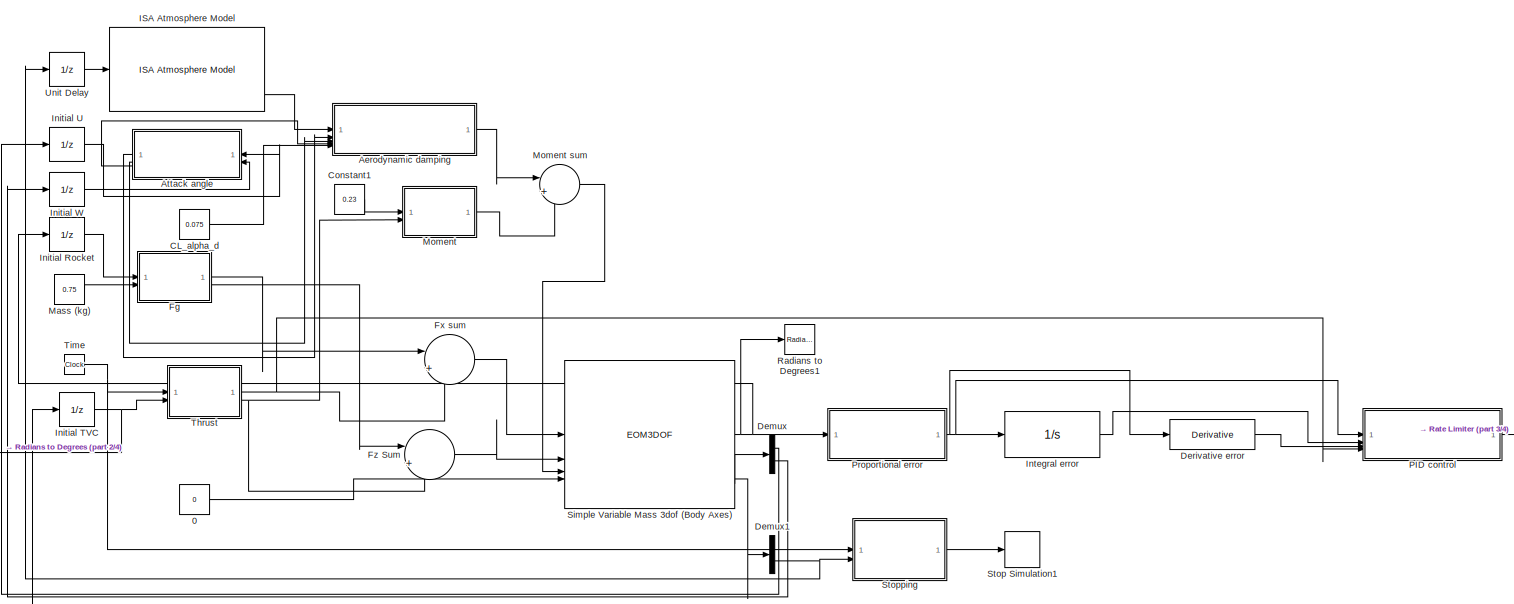
[diagram: root canvas - part 1/4, full width, middle band]
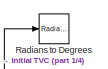
[diagram: root canvas - part 2/4, middle left region]
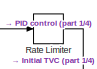
[diagram: root canvas - part 3/4, middle right region]
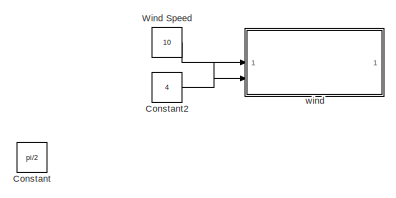
[diagram: root canvas - part 4/4, bottom left region]
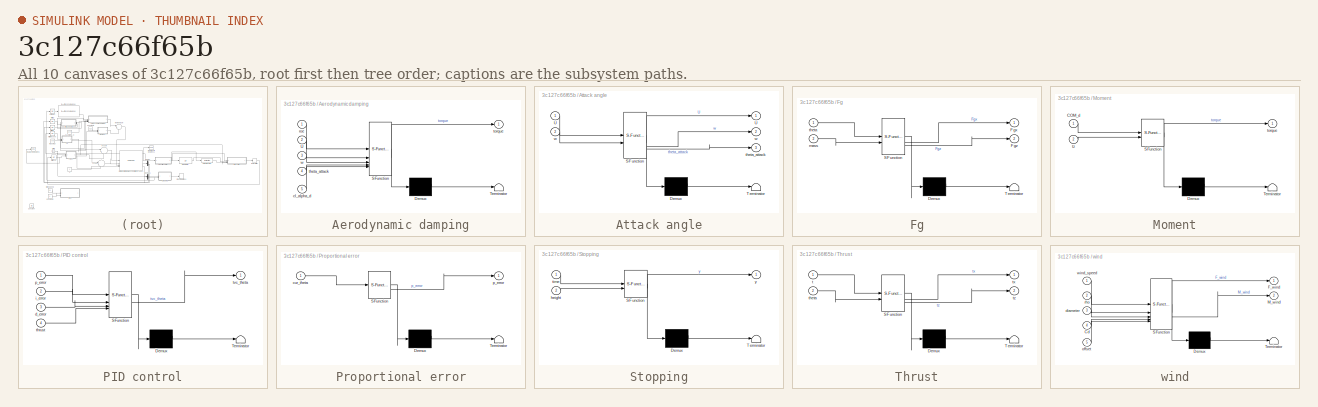
[diagram: thumbnail index - all 10 canvases of the model, root first then tree order]
MODEL slx_3c127c66f65b
KIND model
CONFIG AbsTol = auto
CONFIG EnableMultiTasking = off
CONFIG FixedStep = 0.01
CONFIG MaxStep = auto
CONFIG MinStep = auto
CONFIG RelTol = 1e-3
CONFIG SampleTimeConstraint = Unconstrained
CONFIG SolverName = FixedStepAuto
CONFIG StartTime = 0.0
CONFIG StopTime = 50
BLOCK [Constant] 0
  Value = 0
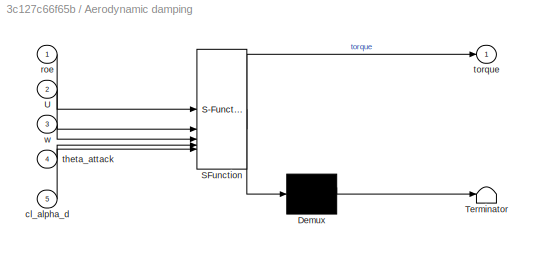
BLOCK [SubSystem] Aerodynamic damping
  ErrorFcn = Stateflow.Translate.translate
  PermitHierarchicalResolution = ExplicitOnly
  SFBlockType = MATLAB Function
  TreatAsAtomicUnit = on
BLOCK [Demux] Aerodynamic damping/ Demux 
  Outputs = 1
BLOCK [S-Function] Aerodynamic damping/ SFunction 
  EnableBusSupport = on
  FunctionName = sf_sfun
  PortCounts = [5 2]
  SFcnIsStateOwnerBlock = off
  SFunctionDeploymentMode = off
  Tag = Stateflow S-Function 10
BLOCK [Terminator] Aerodynamic damping/ Terminator 
BLOCK [Inport] Aerodynamic damping/U
  Port = 2
BLOCK [Inport] Aerodynamic damping/cl_alpha_d
  Port = 5
BLOCK [Inport] Aerodynamic damping/roe
BLOCK [Inport] Aerodynamic damping/theta_attack
  Port = 4
BLOCK [Outport] Aerodynamic damping/torque
BLOCK [Inport] Aerodynamic damping/w
  Port = 3
BLOCK [SubSystem] Attack angle
  ErrorFcn = Stateflow.Translate.translate
  PermitHierarchicalResolution = ExplicitOnly
  SFBlockType = MATLAB Function
  TreatAsAtomicUnit = on
BLOCK [Demux] Attack angle/ Demux 
  Outputs = 1
BLOCK [S-Function] Attack angle/ SFunction 
  EnableBusSupport = on
  FunctionName = sf_sfun
  PortCounts = [2 4]
  SFcnIsStateOwnerBlock = off
  SFunctionDeploymentMode = off
  Tag = Stateflow S-Function 11
BLOCK [Terminator] Attack angle/ Terminator 
BLOCK [Outport] Attack angle/U
BLOCK [Inport] Attack angle/U 
BLOCK [Outport] Attack angle/theta_attack
  Port = 3
BLOCK [Outport] Attack angle/w
  Port = 2
BLOCK [Inport] Attack angle/w 
  Port = 2
BLOCK [Constant] CL_alpha_d
  Value = 0.075
BLOCK [Constant] Constant
  Value = pi/2
BLOCK [Constant] Constant1
  Value = 0.23
BLOCK [Constant] Constant2
  Value = 4
BLOCK [Demux] Demux
  Outputs = 2
BLOCK [Demux] Demux1
  Outputs = 2
BLOCK [Derivative] Derivative error
BLOCK [SubSystem] Fg
  ErrorFcn = Stateflow.Translate.translate
  PermitHierarchicalResolution = ExplicitOnly
  SFBlockType = MATLAB Function
  TreatAsAtomicUnit = on
BLOCK [Demux] Fg/ Demux 
  Outputs = 1
BLOCK [S-Function] Fg/ SFunction 
  EnableBusSupport = on
  FunctionName = sf_sfun
  PortCounts = [2 3]
  SFcnIsStateOwnerBlock = off
  SFunctionDeploymentMode = off
  Tag = Stateflow S-Function 4
BLOCK [Terminator] Fg/ Terminator 
BLOCK [Outport] Fg/Fgx
BLOCK [Outport] Fg/Fgz
  Port = 2
BLOCK [Inport] Fg/mass
  Port = 2
BLOCK [Inport] Fg/theta
BLOCK [Sum] Fx sum
  Inputs = |++
BLOCK [Sum] Fz Sum
  Inputs = |++
BLOCK [Reference] ISA Atmosphere Model  REF=aerolibatmos2/ISA Atmosphere Model
  SourceBlock = aerolibatmos2/ISA Atmosphere Model
  SourceType = International Standard Atmosphere Model
BLOCK [UnitDelay] Initial Rocket
  HasFrameUpgradeWarning = on
  InitialCondition = 1.62316
  SampleTime = -1
BLOCK [UnitDelay] Initial TVC
  HasFrameUpgradeWarning = on
  InitialCondition = 1.62316
  SampleTime = -1
BLOCK [UnitDelay] Initial U
  HasFrameUpgradeWarning = on
  InitialCondition = 20
  SampleTime = -1
BLOCK [UnitDelay] Initial W
  HasFrameUpgradeWarning = on
  SampleTime = -1
BLOCK [Integrator] Integral error
  ContinuousStateAttributes = 'error'
  LimitOutput = on
  UpperSaturationLimit = 5
BLOCK [Constant] Mass (kg)
  Value = 0.75
BLOCK [SubSystem] Moment
  ErrorFcn = Stateflow.Translate.translate
  PermitHierarchicalResolution = ExplicitOnly
  SFBlockType = MATLAB Function
  TreatAsAtomicUnit = on
BLOCK [Sum] Moment sum
  Inputs = |++
BLOCK [Demux] Moment/ Demux 
  Outputs = 1
BLOCK [S-Function] Moment/ SFunction 
  EnableBusSupport = on
  FunctionName = sf_sfun
  PortCounts = [2 2]
  SFcnIsStateOwnerBlock = off
  SFunctionDeploymentMode = off
  Tag = Stateflow S-Function 9
BLOCK [Terminator] Moment/ Terminator 
BLOCK [Inport] Moment/COM_d
BLOCK [Outport] Moment/torque
BLOCK [Inport] Moment/tz
  Port = 2
BLOCK [SubSystem] PID control
  ErrorFcn = Stateflow.Translate.translate
  PermitHierarchicalResolution = ExplicitOnly
  SFBlockType = MATLAB Function
  TreatAsAtomicUnit = on
BLOCK [Demux] PID control/ Demux 
  Outputs = 1
BLOCK [S-Function] PID control/ SFunction 
  EnableBusSupport = on
  FunctionName = sf_sfun
  PortCounts = [4 2]
  SFcnIsStateOwnerBlock = off
  SFunctionDeploymentMode = off
  Tag = Stateflow S-Function 6
BLOCK [Terminator] PID control/ Terminator 
BLOCK [Inport] PID control/d_error
  Port = 3
BLOCK [Inport] PID control/i_error
  Port = 2
BLOCK [Inport] PID control/p_error
BLOCK [Inport] PID control/thrust
  Port = 4
BLOCK [Outport] PID control/tvc_theta
BLOCK [SubSystem] Proportional error
  ErrorFcn = Stateflow.Translate.translate
  PermitHierarchicalResolution = ExplicitOnly
  SFBlockType = MATLAB Function
  TreatAsAtomicUnit = on
BLOCK [Demux] Proportional error/ Demux 
  Outputs = 1
BLOCK [S-Function] Proportional error/ SFunction 
  EnableBusSupport = on
  FunctionName = sf_sfun
  PortCounts = [1 2]
  SFcnIsStateOwnerBlock = off
  SFunctionDeploymentMode = off
  Tag = Stateflow S-Function 5
BLOCK [Terminator] Proportional error/ Terminator 
BLOCK [Inport] Proportional error/cur_theta
BLOCK [Outport] Proportional error/p_error
BLOCK [Reference] Radians to Degrees  REF=simulink_extras/Transformations/Radians
to Degrees
  SourceBlock = simulink_extras/Transformations/Radians\nto Degrees
  SourceType = RadiansToDegrees
BLOCK [Reference] Radians to Degrees1  REF=simulink_extras/Transformations/Radians
to Degrees
  SourceBlock = simulink_extras/Transformations/Radians\nto Degrees
  SourceType = RadiansToDegrees
BLOCK [RateLimiter] Rate Limiter
  FallingSlewLimit = -8
  RisingSlewLimit = 8
  SampleTimeMode = inherited
BLOCK [EOM3DOF] Simple Variable Mass 3dof (Body Axes)
  mass = 0.75
  mass_f = 0.75
  mtype = Simple Variable
  theta_ini = 1.62316
BLOCK [Stop] Stop Simulation1
BLOCK [SubSystem] Stopping
  ErrorFcn = Stateflow.Translate.translate
  PermitHierarchicalResolution = ExplicitOnly
  SFBlockType = MATLAB Function
  TreatAsAtomicUnit = on
BLOCK [Demux] Stopping/ Demux 
  Outputs = 1
BLOCK [S-Function] Stopping/ SFunction 
  EnableBusSupport = on
  FunctionName = sf_sfun
  PortCounts = [2 2]
  SFcnIsStateOwnerBlock = off
  SFunctionDeploymentMode = off
  Tag = Stateflow S-Function 8
BLOCK [Terminator] Stopping/ Terminator 
BLOCK [Inport] Stopping/height
  Port = 2
BLOCK [Inport] Stopping/time
BLOCK [Outport] Stopping/y
BLOCK [SubSystem] Thrust
  ErrorFcn = Stateflow.Translate.translate
  PermitHierarchicalResolution = ExplicitOnly
  SFBlockType = MATLAB Function
  TreatAsAtomicUnit = on
BLOCK [Demux] Thrust/ Demux 
  Outputs = 1
BLOCK [S-Function] Thrust/ SFunction 
  EnableBusSupport = on
  FunctionName = sf_sfun
  PortCounts = [2 3]
  SFcnIsStateOwnerBlock = off
  SFunctionDeploymentMode = off
  Tag = Stateflow S-Function 2
BLOCK [Terminator] Thrust/ Terminator 
BLOCK [Inport] Thrust/t
BLOCK [Inport] Thrust/theta
  Port = 2
BLOCK [Outport] Thrust/tx
BLOCK [Outport] Thrust/tz
  Port = 2
BLOCK [Clock] Time
BLOCK [UnitDelay] Unit Delay
  HasFrameUpgradeWarning = on
  SampleTime = -1
BLOCK [Constant] Wind Speed
  Value = 10
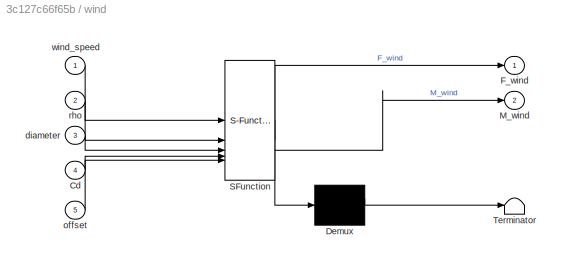
BLOCK [SubSystem] wind
  ErrorFcn = Stateflow.Translate.translate
  PermitHierarchicalResolution = ExplicitOnly
  SFBlockType = MATLAB Function
  TreatAsAtomicUnit = on
BLOCK [Demux] wind/ Demux 
  Outputs = 1
BLOCK [S-Function] wind/ SFunction 
  EnableBusSupport = off
  FunctionName = sf_sfun
  PortCounts = [5 3]
  SFcnIsStateOwnerBlock = off
  SFunctionDeploymentMode = off
  Tag = Stateflow S-Function 1
BLOCK [Terminator] wind/ Terminator 
BLOCK [Inport] wind/Cd
  Port = 4
BLOCK [Outport] wind/F_wind
BLOCK [Outport] wind/M_wind
  Port = 2
BLOCK [Inport] wind/diameter
  Port = 3
BLOCK [Inport] wind/offset
  Port = 5
BLOCK [Inport] wind/rho
  Port = 2
BLOCK [Inport] wind/wind_speed
LINE 0:1 -> Simple Variable Mass 3dof (Body Axes):4
LINE Aerodynamic damping:1 -> Moment sum:1
LINE Attack angle:1 -> Aerodynamic damping:2
LINE Attack angle:2 -> Aerodynamic damping:3
LINE Attack angle:3 -> Aerodynamic damping:4
LINE CL_alpha_d:1 -> Aerodynamic damping:5
LINE Constant1:1 -> Moment:1
LINE Constant2:1 -> wind:3
NET Demux1:2 -> Stopping:2, Unit Delay:1
LINE Demux:1 -> Initial U:1
LINE Demux:2 -> Initial W:1
LINE Derivative error:1 -> PID control:3
LINE Fg:1 -> Fx sum:1
LINE Fg:2 -> Fz Sum:1
LINE Fx sum:1 -> Simple Variable Mass 3dof (Body Axes):1
LINE Fz Sum:1 -> Simple Variable Mass 3dof (Body Axes):2
LINE ISA Atmosphere Model:4 -> Aerodynamic damping:1
LINE Initial Rocket:1 -> Fg:1
NET Initial TVC:1 -> Radians to Degrees:1, Thrust:2
LINE Initial U:1 -> Attack angle:1
LINE Initial W:1 -> Attack angle:2
LINE Integral error:1 -> PID control:2
LINE Mass (kg):1 -> Fg:2
LINE Moment sum:1 -> Simple Variable Mass 3dof (Body Axes):3
LINE Moment:1 -> Moment sum:2
LINE PID control:1 -> Rate Limiter:1
NET Proportional error:1 -> Derivative error:1, Integral error:1, PID control:1
LINE Rate Limiter:1 -> Initial TVC:1
NET Simple Variable Mass 3dof (Body Axes):1 -> Initial Rocket:1, Proportional error:1, Radians to Degrees1:1
LINE Simple Variable Mass 3dof (Body Axes):4 -> Demux1:1
LINE Simple Variable Mass 3dof (Body Axes):5 -> Demux:1
LINE Stopping:1 -> Stop Simulation1:1
NET Thrust:1 -> Fx sum:2, PID control:4
NET Thrust:2 -> Fz Sum:2, Moment:2
NET Time:1 -> Stopping:1, Thrust:1
LINE Unit Delay:1 -> ISA Atmosphere Model:1
LINE Wind Speed:1 -> wind:1
note: NET lines group one-source signal fan-out (src -> all destinations, sorted); 1:1 wires keep LINE
CHART wind states=1 transitions=1
  STATE_LABEL 'eML_blk_kernel()'
  STATE_LABEL 'SCRIPT:\nfunction [F_wind, M_wind] = wind_block(wind_speed, rho, diameter, Cd, offset)\n    F_magnitude = 0.5 * rho * pi*(diameter/2)^2 * Cd * wind_speed^2;  \n    F_wind = F_magnitude\n\n    M_magnitude = F_magnitude * offset;  \n    M_wind = [0; 0; M_magnitude];  \nend\n'
CHART Thrust states=1 transitions=1
  STATE_LABEL 'eML_blk_kernel()'
  STATE_LABEL "SCRIPT:\nfunction [tx, tz] = fcn(t, theta)\n    persistent thrust_interp;\n    \n    if isempty(thrust_interp)\n        loadedData = load('thrust_data1.mat'); \n        t_data = loadedData.t_data;\n        T_data = loadedData.T_data; \n\n        thrust_interp = @(t) interp1(t_data, T_data, t, 'pchip', 'extrap');\n    end\n\n    burnout_time = 7.246;\n    if t < burnout_time\n        T = thrust_interp(t);\n    el...<+106ch>"
CHART Fg states=1 transitions=1
  STATE_LABEL 'eML_blk_kernel()'
  STATE_LABEL 'SCRIPT:\nfunction [Fgx, Fgz]= fcn(theta, mass)\n\nFgx = mass * sin(theta) * -9.8;\nFgz = mass * cos(theta) * -9.8;\n'
CHART Proportional error states=1 transitions=1
  STATE_LABEL 'eML_blk_kernel()'
  STATE_LABEL 'SCRIPT:\nfunction p_error = fcn(cur_theta)\n    theta_desired = pi/2;\n    % Calculate the proportional error\n    p_error = theta_desired-cur_theta;\nend\n'
CHART PID control states=1 transitions=1
  STATE_LABEL 'eML_blk_kernel()'
  STATE_LABEL 'SCRIPT:\nfunction tvc_theta = fcn(p_error, i_error, d_error, thrust)\n    % Constants for PID controller (adjustable)\n\n\n    % Kp = 0.3;   % less aggressive proportional\n    % Ki = 0.05;  % smaller integral action\n    % Kd = 0.3; \n\n    % Kp = 0.8;\n    % Ki = 0.02;\n    % Kd = 1.2;\n\n    Kp = 0.8;\n    Ki = 0.3;\n    Kd = 2.1;\n\n    % Kp = 0.35;\n    % Ki = 0.0;\n    % Kd = 3;\n\n    % Compute the PID control ...<+750ch>'
CHART Stopping states=1 transitions=1
  STATE_LABEL 'eML_blk_kernel()'
  STATE_LABEL 'SCRIPT:\nfunction y = fcn(time, height)\n\nif time > 1 && height > 0\n    y = 1;\nelse\n    y = 0;\nend\n'
CHART Moment states=1 transitions=1
  STATE_LABEL 'eML_blk_kernel()'
  STATE_LABEL 'SCRIPT:\nfunction torque = fcn(COM_d, tz)\n\ntorque = COM_d * tz;\n\n% TODO: add the aerodynamic stuff'
CHART Aerodynamic damping states=1 transitions=1
  STATE_LABEL 'eML_blk_kernel()'
  STATE_LABEL 'SCRIPT:\nfunction torque = fcn(roe, U, w, theta_attack, cl_alpha_d)\n\n% cl is lift coefficient\ncl = cl_alpha_d * theta_attack;\n\narea = (0.0254 * 3/2)^2 * pi;\nlift = cl * roe * sqrt(U^2 + w^2) * area;\n% center of pressure is 3 inches below center of mass\nCOM_d = 3;\ntorque = lift * COM_d;\n\n'
CHART Attack angle states=1 transitions=1
  STATE_LABEL 'eML_blk_kernel()'
  STATE_LABEL 'SCRIPT:\nfunction [U, w, theta_attack]= fcn(U, w)\n\ntheta_attack = atan(w/U);'
CHART  states=0 transitions=0
CHART  states=0 transitions=0
CHART  states=0 transitions=0
CHART  states=0 transitions=0
CHART  states=0 transitions=0
CHART  states=0 transitions=0
CHART  states=0 transitions=0
CHART  states=0 transitions=0
CHART  states=0 transitions=0
